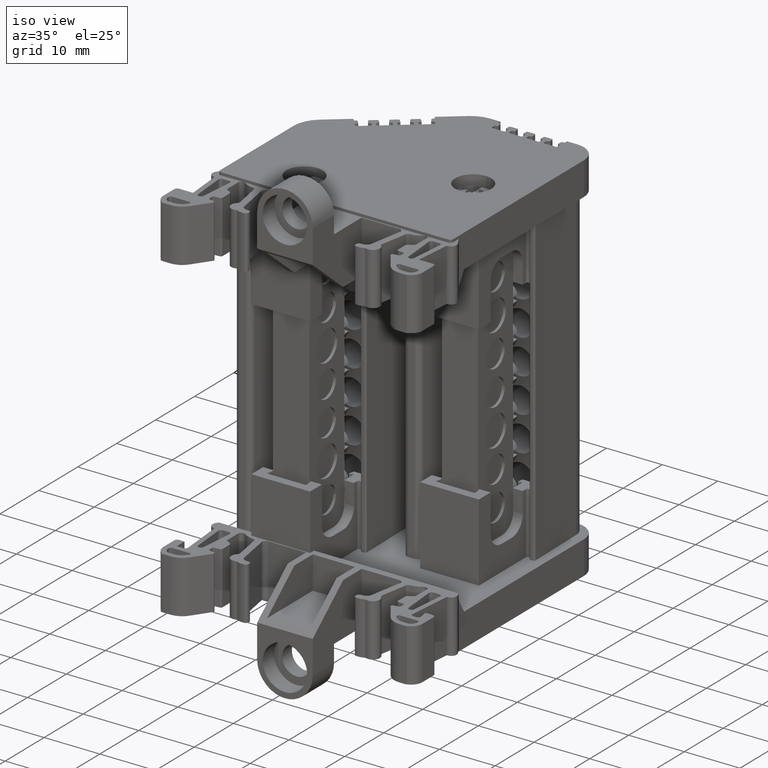
[diagram: clean part render]
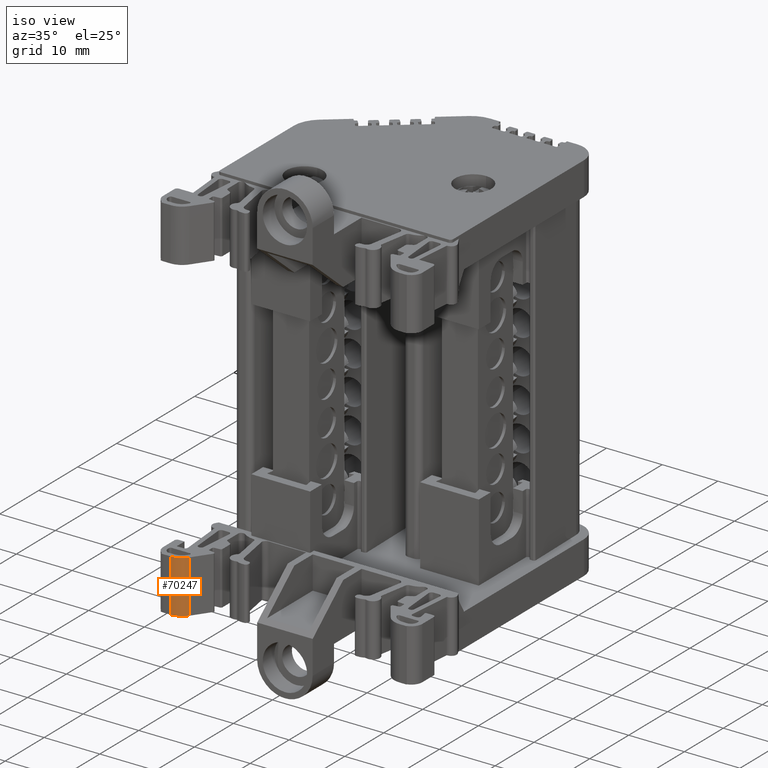
[diagram: same view with one face highlighted and labeled with its STEP entity id]
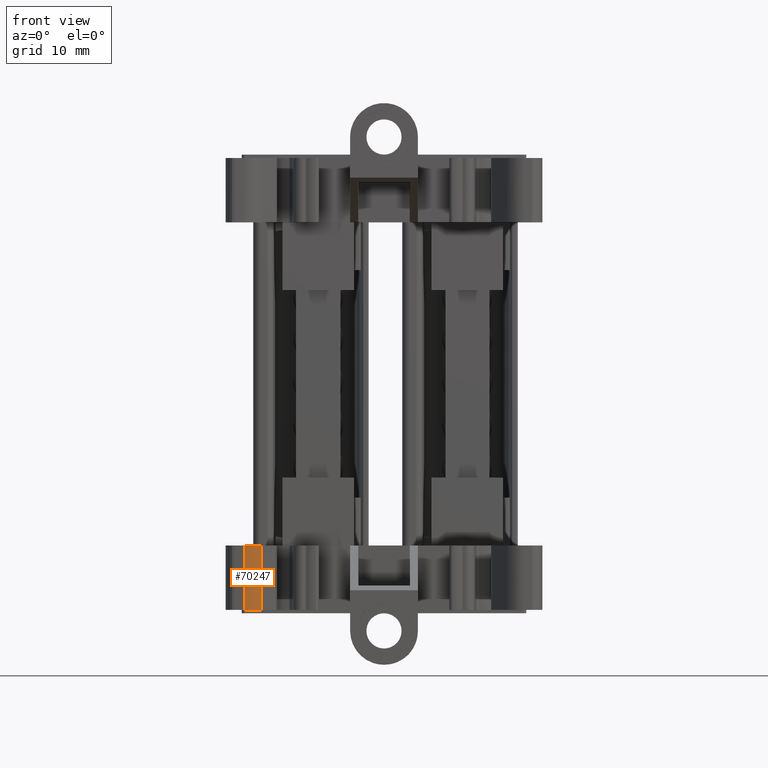
[diagram: same view with one face highlighted and labeled with its STEP entity id]
A machine part, iso view. The second image highlights one B-rep face of the part: STEP entity #70247.
A second angle (front view) of the same face is appended — the face is thin or edge-on in the first view.
In plain terms, the highlighted cylindrical surface (edge-blend (fillet) strip) has radius 2.9912 mm, axis along (0, 0, -1).
Its self-contained STEP definition (entity closure, byte-faithful):
#3846 = VERTEX_POINT ( 'NONE', #30745 ) ;
#4534 = VECTOR ( 'NONE', #32944, 1000.000000000000000 ) ;
#4734 = VECTOR ( 'NONE', #48306, 1000.000000000000000 ) ;
#8605 = EDGE_LOOP ( 'NONE', ( #11940, #12024, #12078, #46902 ) ) ;
#11442 = EDGE_CURVE ( 'NONE', #24223, #24308, #32931, .T. ) ;
#11661 = EDGE_CURVE ( 'NONE', #24308, #24372, #41956, .T. ) ;
#11940 = ORIENTED_EDGE ( 'NONE', *, *, #11442, .T. ) ;
#12024 = ORIENTED_EDGE ( 'NONE', *, *, #11661, .T. ) ;
#12078 = ORIENTED_EDGE ( 'NONE', *, *, #12186, .F. ) ;
#12186 = EDGE_CURVE ( 'NONE', #3846, #24372, #48336, .T. ) ;
#12235 = EDGE_CURVE ( 'NONE', #24223, #3846, #38487, .T. ) ;
#18216 = AXIS2_PLACEMENT_3D ( 'NONE', #71001, #70989, #70981 ) ;
#24223 = VERTEX_POINT ( 'NONE', #55609 ) ;
#24308 = VERTEX_POINT ( 'NONE', #55740 ) ;
#24372 = VERTEX_POINT ( 'NONE', #55878 ) ;
#30745 = CARTESIAN_POINT ( 'NONE',  ( -64.91315574361667000, -0.05008754996737017200, -32.09224290364846200 ) ) ;
#32918 = CARTESIAN_POINT ( 'NONE',  ( -67.37618379242266500, -1.325470651713843900, -32.09224290364846200 ) ) ;
#32931 = LINE ( 'NONE', #32918, #4534 ) ;
#32944 = DIRECTION ( 'NONE',  ( 0.0000000000000000000, 0.0000000000000000000, -1.000000000000000000 ) ) ;
#34764 = CARTESIAN_POINT ( 'NONE',  ( -65.56105858730856500, -0.7694941511646175000, -41.56427430695350000 ) ) ;
#34778 = CARTESIAN_POINT ( 'NONE',  ( -67.37618379242266500, -1.325470651713842600, -41.56427430695350000 ) ) ;
#34786 = CARTESIAN_POINT ( 'NONE',  ( -64.91315574361665600, -0.05008754996737061600, -41.56427430695350000 ) ) ;
#34791 = CARTESIAN_POINT ( 'NONE',  ( -66.41475492056889600, -1.211547532566786800, -41.56427430695350700 ) ) ;
#34794 = CARTESIAN_POINT ( 'NONE',  ( -66.89550939502558400, -1.327539236916207100, -41.56427430695349300 ) ) ;
#34796 = CARTESIAN_POINT ( 'NONE',  ( -65.18887685209564600, -0.4438260744946344000, -41.56427430695350000 ) ) ;
#38487 = B_SPLINE_CURVE_WITH_KNOTS ( 'NONE', 3,
 ( #48366, #48384, #48350, #48379, #48387, #48357, #48358, #48390, #48409, #48440, #48431, #48404, #48427, #48439, #48452, #48449, #48432 ),
 .UNSPECIFIED., .F., .F.,
 ( 4, 1, 2, 2, 2, 1, 1, 2, 2, 4 ),
 ( 0.0000000000000000000, 0.1250000000000000000, 0.1875000000000000000, 0.2500000000000000000, 0.5000000000000000000, 0.6250000000000000000, 0.6875000000000000000, 0.7187500000000000000, 0.7500000000000000000, 1.000000000000000000 ),
 .UNSPECIFIED. ) ;
#41956 = B_SPLINE_CURVE_WITH_KNOTS ( 'NONE', 3,
 ( #34778, #34794, #34791, #34764, #34796, #34786 ),
 .UNSPECIFIED., .F., .F.,
 ( 4, 2, 4 ),
 ( 0.0000000000000000000, 0.5000000000000000000, 1.000000000000000000 ),
 .UNSPECIFIED. ) ;
#46902 = ORIENTED_EDGE ( 'NONE', *, *, #12235, .F. ) ;
#48298 = CARTESIAN_POINT ( 'NONE',  ( -64.91315574361668400, -0.05008754996736232400, -32.09224290364846200 ) ) ;
#48306 = DIRECTION ( 'NONE',  ( 0.0000000000000000000, -0.0000000000000000000, -1.000000000000000000 ) ) ;
#48336 = LINE ( 'NONE', #48298, #4734 ) ;
#48350 = CARTESIAN_POINT ( 'NONE',  ( -67.07954906531466600, -1.316036349550893500, -32.09224290364847600 ) ) ;
#48357 = CARTESIAN_POINT ( 'NONE',  ( -66.73147374549347400, -1.258609371833735900, -32.09224290364846200 ) ) ;
#48358 = CARTESIAN_POINT ( 'NONE',  ( -66.43459249992032800, -1.188253150158023600, -32.09224290364846900 ) ) ;
#48366 = CARTESIAN_POINT ( 'NONE',  ( -67.37618379242266500, -1.325470651713840200, -32.09224290364846200 ) ) ;
#48379 = CARTESIAN_POINT ( 'NONE',  ( -66.90422722782292900, -1.290598736441350500, -32.09224290364846900 ) ) ;
#48384 = CARTESIAN_POINT ( 'NONE',  ( -67.25697011236404400, -1.325860516493244900, -32.09224290364845400 ) ) ;
#48387 = CARTESIAN_POINT ( 'NONE',  ( -66.78781249384125800, -1.270170672997834400, -32.09224290364846200 ) ) ;
#48390 = CARTESIAN_POINT ( 'NONE',  ( -66.20468707995738100, -1.102628219324649700, -32.09224290364846200 ) ) ;
#48404 = CARTESIAN_POINT ( 'NONE',  ( -65.47922770667389600, -0.6577280443082321700, -32.09224290364846900 ) ) ;
#48409 = CARTESIAN_POINT ( 'NONE',  ( -65.87951659092952600, -0.9344671531362545000, -32.09224290364846200 ) ) ;
#48427 = CARTESIAN_POINT ( 'NONE',  ( -65.43203720786009100, -0.6186434412255704700, -32.09224290364846200 ) ) ;
#48431 = CARTESIAN_POINT ( 'NONE',  ( -65.55076394589717400, -0.7151701890695894000, -32.09224290364845400 ) ) ;
#48432 = CARTESIAN_POINT ( 'NONE',  ( -64.91315574361667000, -0.05008754996737017200, -32.09224290364846200 ) ) ;
#48439 = CARTESIAN_POINT ( 'NONE',  ( -65.40777170686708100, -0.5978959111664573500, -32.09224290364846900 ) ) ;
#48440 = CARTESIAN_POINT ( 'NONE',  ( -65.72293527443631000, -0.8409085411409749100, -32.09224290364846200 ) ) ;
#48449 = CARTESIAN_POINT ( 'NONE',  ( -65.05072066002601600, -0.2461039057531739200, -32.09224290364846200 ) ) ;
#48452 = CARTESIAN_POINT ( 'NONE',  ( -65.20820114550342300, -0.4221994151908086700, -32.09224290364847600 ) ) ;
#55609 = CARTESIAN_POINT ( 'NONE',  ( -67.37618379242266500, -1.325470651713840200, -32.09224290364846200 ) ) ;
#55740 = CARTESIAN_POINT ( 'NONE',  ( -67.37618379242266500, -1.325470651713842600, -41.56427430695350000 ) ) ;
#55878 = CARTESIAN_POINT ( 'NONE',  ( -64.91315574361665600, -0.05008754996737061600, -41.56427430695350000 ) ) ;
#70247 = ADVANCED_FACE ( 'NONE', ( #70998 ), #70970, .T. ) ;
#70970 = CYLINDRICAL_SURFACE ( 'NONE', #18216, 2.991167811603981300 ) ;
#70981 = DIRECTION ( 'NONE',  ( -1.000000000000000000, 0.0000000000000000000, 0.0000000000000000000 ) ) ;
#70989 = DIRECTION ( 'NONE',  ( 0.0000000000000000000, 0.0000000000000000000, -1.000000000000000000 ) ) ;
#70998 = FACE_OUTER_BOUND ( 'NONE', #8605, .T. ) ;
#71001 = CARTESIAN_POINT ( 'NONE',  ( -67.36331140269159300, 1.665669461814501400, -32.09224290364846200 ) ) ;